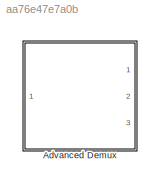
MODEL slx_aa76e47e7a0b
KIND library
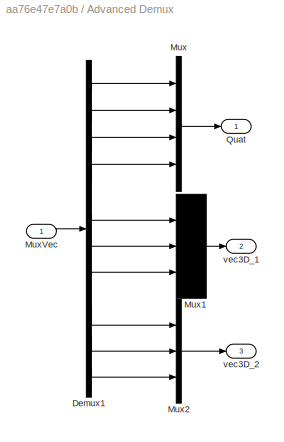
BLOCK [SubSystem] Advanced Demux
  Ports = [1, 3]
  RequestExecContextInheritance = off
BLOCK [Demux] Advanced Demux/Demux1
  DisplayOption = bar
  Outputs = 10
  Ports = [1, 10]
BLOCK [Mux] Advanced Demux/Mux
  DisplayOption = bar
  Ports = [4, 1]
BLOCK [Mux] Advanced Demux/Mux1
  Inputs = 3
  Ports = [3, 1]
BLOCK [Mux] Advanced Demux/Mux2
  DisplayOption = bar
  Inputs = 3
  Ports = [3, 1]
BLOCK [Inport] Advanced Demux/MuxVec
  IconDisplay = Port number
BLOCK [Outport] Advanced Demux/Quat
  IconDisplay = Port number
BLOCK [Outport] Advanced Demux/vec3D_1
  IconDisplay = Port number
  Port = 2
BLOCK [Outport] Advanced Demux/vec3D_2
  IconDisplay = Port number
  Port = 3
LINE Advanced Demux/Demux1:1 -> Advanced Demux/Mux:1
LINE Advanced Demux/Demux1:10 -> Advanced Demux/Mux2:3
LINE Advanced Demux/Demux1:2 -> Advanced Demux/Mux:2
LINE Advanced Demux/Demux1:3 -> Advanced Demux/Mux:3
LINE Advanced Demux/Demux1:4 -> Advanced Demux/Mux:4
LINE Advanced Demux/Demux1:5 -> Advanced Demux/Mux1:1
LINE Advanced Demux/Demux1:6 -> Advanced Demux/Mux1:2
LINE Advanced Demux/Demux1:7 -> Advanced Demux/Mux1:3
LINE Advanced Demux/Demux1:8 -> Advanced Demux/Mux2:1
LINE Advanced Demux/Demux1:9 -> Advanced Demux/Mux2:2
LINE Advanced Demux/Mux1:1 -> Advanced Demux/vec3D_1:1
LINE Advanced Demux/Mux2:1 -> Advanced Demux/vec3D_2:1
LINE Advanced Demux/Mux:1 -> Advanced Demux/Quat:1
LINE Advanced Demux/MuxVec:1 -> Advanced Demux/Demux1:1
